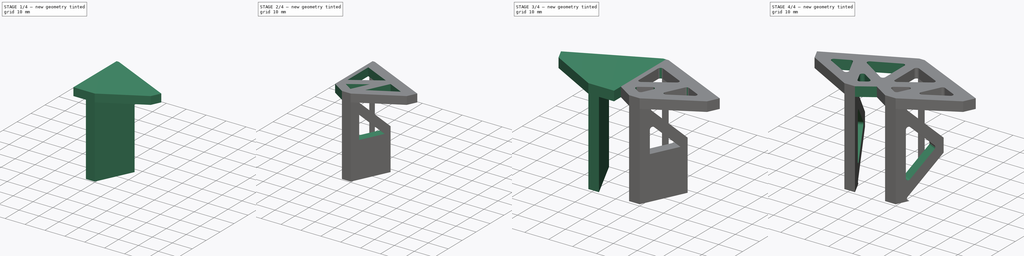
[diagram: build sequence overview — one tinted view per stage of 4, left to right]
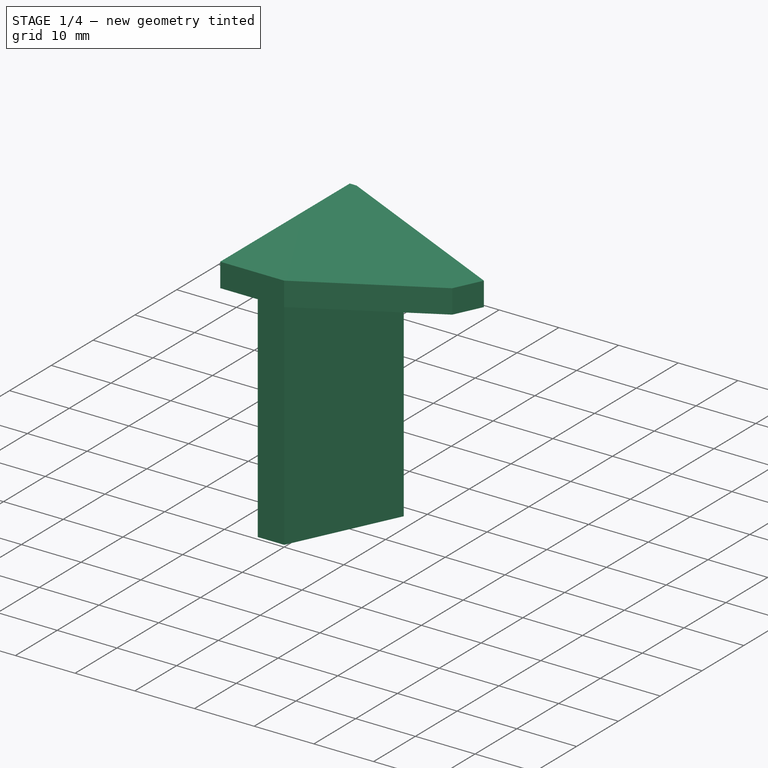
[diagram: stage 1 of 4 — iso view after this stage's code; geometry added in this stage tinted green]
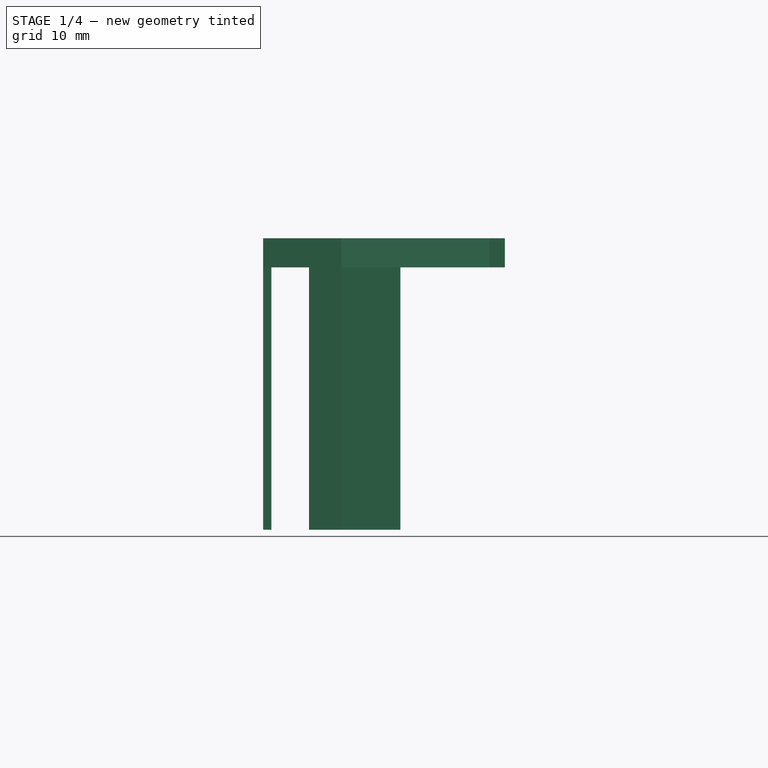
[diagram: stage 1 of 4 — front view after this stage's code; geometry added in this stage tinted green]
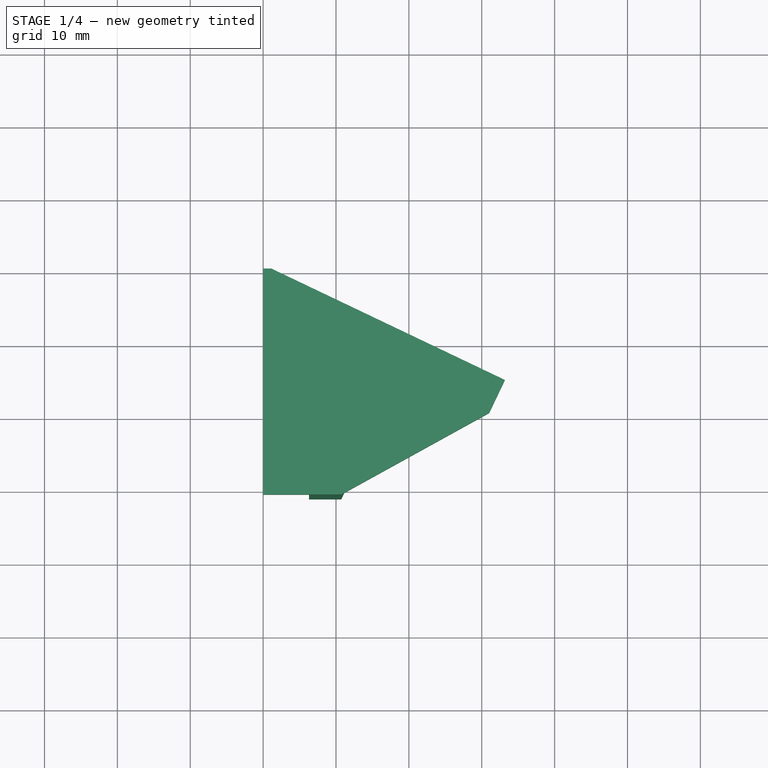
[diagram: stage 1 of 4 — top view after this stage's code; geometry added in this stage tinted green]
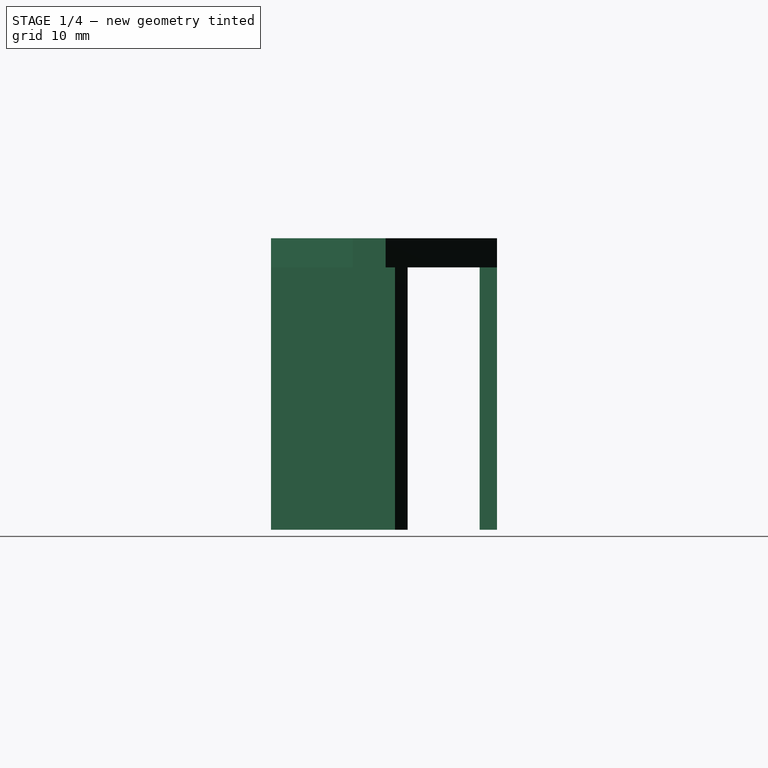
[diagram: stage 1 of 4 — right view after this stage's code; geometry added in this stage tinted green]
FCSTD DOCUMENT  (FreeCAD 0.20R29177 +426 (Git))
Label: topRowRack
License: All rights reserved
LicenseURL: http://en.wikipedia.org/wiki/All_rights_reserved
objects: Sketcher::SketchObject×8, PartDesign::Pocket×4, PartDesign::Mirrored×4, PartDesign::CoordinateSystem×3, PartDesign::Fillet×3, PartDesign::Pad×2, Spreadsheet::Sheet×1, PartDesign::PolarPattern×1, PartDesign::MultiTransform×1, PartDesign::Body×1
note: 36 computed .brp shape members not serialized (recipe doc carries the construction recipe); baked Part::Feature solids carry a one-line shape summary decoded from their .brp

FEATURE [Spreadsheet::Sheet] Spreadsheet  label="props"
  cells = A1=variable; B1=unit; C1=value; D1=min value; E1=typical value; F1=max value; A2=pan angle; B2=degree; C2(panAngle)=25.5; D2=0; A3=cell diameter; B3=mm; C3(cellDiam)=40; A4=plate left width; B4=mm; C4(plateLeftWidth)=20; E4==cellDiam / 2 - ribThick / 2; A5=plate right (USB side) width; B5=mm; C5(plateRightWidth)=15.5; E5=15.5; A6=plate height; B6=mm; C6(plateHeight)=36; E6==cellDiam - ribThick; A7=rack thicnkess; B7=mm; C7(rackThick)=31; A8=plate thickness; B8=mm; C8(plateThick)=5; A9=rib thickness; B9=mm; C9(ribThick)=4
FEATURE [Sketcher::SketchObject] Sketch  label="plateRibBaseSk"
  FullyConstrained = true
  MapMode = 5
  Support = -> [XY_Plane]
  expr: Constraints[10] = <<props>>.plateThick
  expr: Constraints[11] = <<props>>.plateThick
  expr: Constraints[12] = 90 - <<props>>.panAngle
  expr: Constraints[24] = <<props>>.plateLeftWidth
  expr: Constraints[25] = <<props>>.plateRightWidth
  expr: Constraints[27] = <<props>>.ribThick
  expr: Constraints[28] = <<props>>.rackThick
  sketch-geometry (10):
    g0: LineSegment StartX=0 StartY=0 StartZ=0 EndX=0 EndY=-5 EndZ=0
    g1: LineSegment StartX=0 StartY=-5 StartZ=0 EndX=15.2254 EndY=-12.2621 EndZ=0
    g2: LineSegment StartX=31.0206 StartY=-19.7961 StartZ=0 EndX=33.1732 EndY=-15.2831 EndZ=0
    g3: LineSegment StartX=33.1732 StartY=-15.2831 StartZ=0 EndX=1.13138 EndY=0 EndZ=0
    g4: LineSegment StartX=1.13138 StartY=0 StartZ=0 EndX=0 EndY=0 EndZ=0
    g5: LineSegment StartX=15.2254 StartY=-12.2621 StartZ=0 EndX=6.28786 EndY=-31 EndZ=0
    g6: LineSegment StartX=6.28786 StartY=-31 StartZ=0 EndX=10.7196 EndY=-31 EndZ=0
    g7: LineSegment StartX=10.7196 StartY=-31 StartZ=0 EndX=18.8357 EndY=-13.9842 EndZ=0
    g8: LineSegment StartX=18.8357 StartY=-13.9842 StartZ=0 EndX=31.0206 EndY=-19.7961 EndZ=0
    g9: LineSegment StartX=0 StartY=-48.8284 StartZ=0 EndX=19.1831 EndY=-8.61022 EndZ=0
  constraints (29):
    c: Coincident(g-1,g0)
    c: Coincident(g0,g1)
    c: Coincident(g8,g2)
    c: Coincident(g2,g3)
    c: Coincident(g3,g4)
    c: Coincident(g4,g0)
    c: Horizontal(g4)
    c: Vertical(g0)
    c: Perpendicular(g1,g2)
    c: Parallel(g3,g1)
    c: Distance(g0) = 5
    c: Distance(g2) = 5
    c: Angle(g-2,g3) = 1.12574
    c: Coincident(g5,g6)
    c: Horizontal(g6)
    c: Coincident(g6,g7)
    c: Coincident(g1,g5)
    c: Coincident(g8,g7)
    c: Parallel(g8,g3)
    c: Perpendicular(g1,g5)
    c: Perpendicular(g8,g7)
    c: PointOnObject(g9,g-2)
    c: PointOnObject(g9,g3)
    c: Perpendicular(g3,g9)
    c: Distance(g3,g9) = 20
    c: Distance(g9,g2) = 15.5
    c: Symmetric(g1,g7,g9)
    c: Distance(g1,g7) = 4
    c: DistanceY(g5,g0) = 31
FEATURE [PartDesign::Pad] Pad  label="plateRibBase"
  Direction = (0,0,1)
  Length = 36
  Length2 = 10
  Midplane = true
  Profile = -> Sketch
  ReferenceAxis = -> Sketch [N_Axis]
  Type = 0
  expr: Length = <<props>>.plateHeight
FEATURE [Sketcher::SketchObject] Sketch001  label="plateDatum1Sk"
  ExternalGeometry = -> [Pad]
  FullyConstrained = true
  MapMode = 5
  Placement = pos=(0.209691,0.439625,0) rot=(0.157992,0.698226,0.698226;2.8282rad)
  Support = -> [Pad]
  expr: Constraints[6] = <<props>>.plateLeftWidth
  sketch-geometry (2):
    g0: LineSegment StartX=-21.0212 StartY=0 StartZ=0 EndX=-31.0212 EndY=0 EndZ=0
    g1: LineSegment StartX=-21.0212 StartY=0 StartZ=0 EndX=-21.0212 EndY=-10 EndZ=0
  constraints (8):
    c: PointOnObject(g0,g-1)
    c: Horizontal(g0)
    c: Coincident(g1,g0)
    c: Vertical(g1)
    c: Distance(g0) = 10
    c: Distance(g1) = 10
    c: Distance(g0,g-3) = 20
    c: DistanceX(g-2,g0) = -21.0212  'plateCenterYaxisDiff'
FEATURE [PartDesign::CoordinateSystem] plateLCS1
  AttacherType = Attacher::AttachEngine3D
  MapMode = 49
  Placement = pos=(19.1831,-8.61022,1.2e-15) rot=(-0.952423,0.215511,-0.215511;1.61952rad)
  Support = -> [Sketch001]
FEATURE [Sketcher::SketchObject] Sketch002  label="roofBaseSk"
  ExternalGeometry = -> [Pad]
  FullyConstrained = true
  MapMode = 5
  Placement = pos=(0,0,18) rot=(0,0,1;0rad)
  Support = -> [Pad]
  sketch-geometry (6):
    g0: LineSegment StartX=10.7196 StartY=-31 StartZ=0 EndX=31.0206 EndY=-19.7961 EndZ=0
    g1: LineSegment StartX=31.0206 StartY=-19.7961 StartZ=0 EndX=33.1732 EndY=-15.2831 EndZ=0
    g2: LineSegment StartX=33.1732 StartY=-15.2831 StartZ=0 EndX=1.13138 EndY=0 EndZ=0
    g3: LineSegment StartX=1.13138 StartY=0 StartZ=0 EndX=0 EndY=0 EndZ=0
    g4: LineSegment StartX=0 StartY=0 StartZ=0 EndX=0 EndY=-31 EndZ=0
    g5: LineSegment StartX=0 StartY=-31 StartZ=0 EndX=10.7196 EndY=-31 EndZ=0
  constraints (13):
    c: Coincident(g0,g-6)
    c: Coincident(g0,g1)
    c: Coincident(g1,g-6)
    c: Coincident(g1,g2)
    c: Coincident(g2,g-3)
    c: Coincident(g2,g3)
    c: Coincident(g3,g4)
    c: PointOnObject(g4,g-2)
    c: Coincident(g4,g5)
    c: Coincident(g5,g0)
    c: Horizontal(g5)
    c: Coincident(g0,g-5)
    c: Coincident(g3,g-4)
FEATURE [PartDesign::Pad] Pad001  label="roofBase"
  BaseFeature = -> Pad
  Direction = (0,0,1)
  Length = 4
  Length2 = 10
  Profile = -> Sketch002
  ReferenceAxis = -> Sketch002 [N_Axis]
  Type = 0
  expr: Length = <<props>>.ribThick
FEATURE [Sketcher::SketchObject] Sketch003  label="plateSlotSk"
  ExternalGeometry = -> [Pad001]
  FullyConstrained = true
  MapMode = 5
  Placement = pos=(0.209691,0.439625,0) rot=(0.157992,0.698226,0.698226;2.8282rad)
  Support = -> [Pad001]
  expr: Constraints[10] = <<props>>.plateHeight
  expr: Constraints[9] = <<props>>.plateLeftWidth + <<props>>.plateRightWidth
  sketch-geometry (4):
    g0: LineSegment StartX=-36.5212 StartY=-18 StartZ=0 EndX=-1.02117 EndY=-18 EndZ=0
    g1: LineSegment StartX=-1.02117 StartY=-18 StartZ=0 EndX=-1.02117 EndY=18 EndZ=0
    g2: LineSegment StartX=-1.02117 StartY=18 StartZ=0 EndX=-36.5212 EndY=18 EndZ=0
    g3: LineSegment StartX=-36.5212 StartY=18 StartZ=0 EndX=-36.5212 EndY=-18 EndZ=0
  constraints (11):
    c: Coincident(g0,g1)
    c: Coincident(g1,g2)
    c: Coincident(g2,g3)
    c: Coincident(g3,g0)
    c: Horizontal(g0)
    c: Horizontal(g2)
    c: Vertical(g3)
    c: PointOnObject(g1,g-3)
    c: Symmetric(g1,g0,g-1)
    c: Distance(g2) = 35.5
    c: Distance(g3) = 36
FEATURE [PartDesign::Pocket] Pocket  label="plateSlot"
  BaseFeature = -> Pad001
  Direction = (-0.430511,-0.902585,2e-16)
  Length = 5
  Length2 = 5
  Profile = -> Sketch003
  ReferenceAxis = -> Sketch003 [N_Axis]
  Type = 0
  expr: Length = <<props>>.plateThick
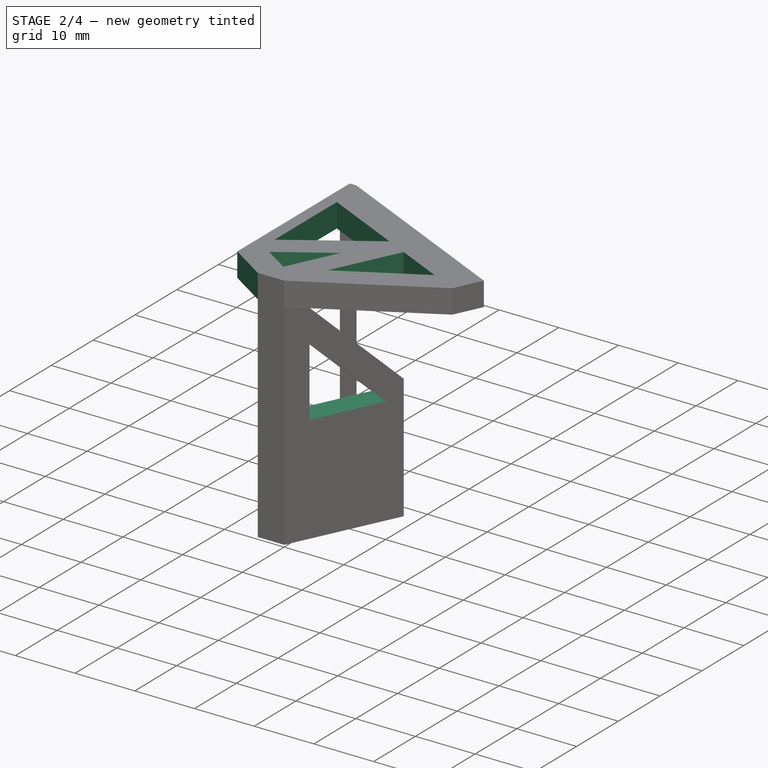
[diagram: stage 2 of 4 — iso view after this stage's code; geometry added in this stage tinted green]
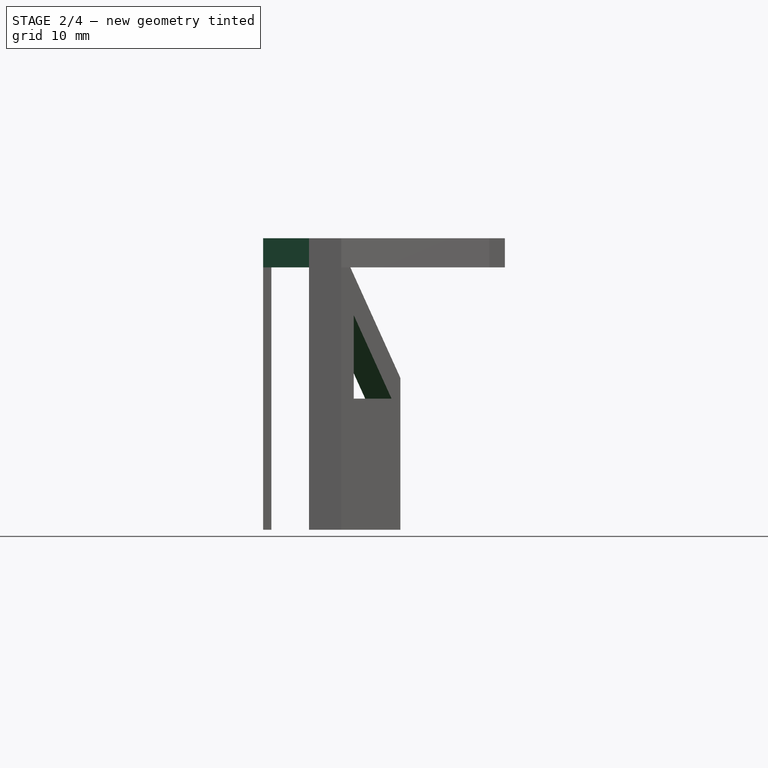
[diagram: stage 2 of 4 — front view after this stage's code; geometry added in this stage tinted green]
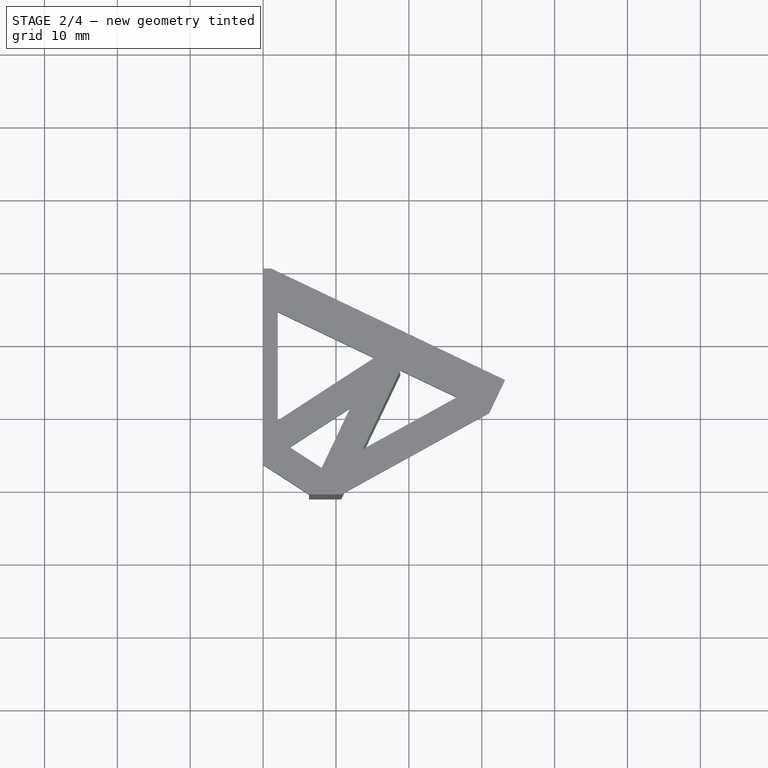
[diagram: stage 2 of 4 — top view after this stage's code; geometry added in this stage tinted green]
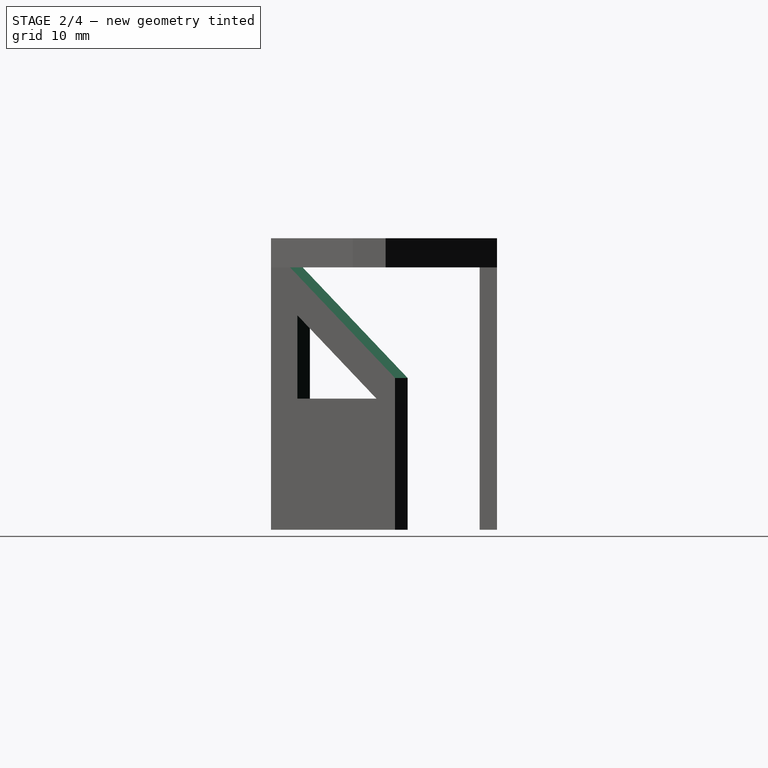
[diagram: stage 2 of 4 — right view after this stage's code; geometry added in this stage tinted green]
FEATURE [Sketcher::SketchObject] Sketch004  label="ribLightSk"
  ExternalGeometry = -> [Pocket]
  FullyConstrained = true
  MapMode = 5
  Placement = pos=(20.7786,-9.91087,0) rot=(0.746143,0.470781,0.470781;1.85954rad)
  Support = -> [Pocket]
  expr: Constraints[11] = <<props>>.ribThick / 2
  expr: Constraints[16] = <<props>>.ribThick
  expr: Constraints[19] = <<props>>.ribThick / sqrt(2)
  expr: Constraints[9] = <<props>>.ribThick / 2
  sketch-geometry (7):
    g0: LineSegment StartX=-23.3652 StartY=18 StartZ=0 EndX=-4.44124 EndY=0 EndZ=0
    g1: LineSegment StartX=-4.51293 StartY=18 StartZ=0 EndX=-20.4633 EndY=18 EndZ=0
    g2: LineSegment StartX=-20.4633 StartY=18 StartZ=0 EndX=-4.51293 EndY=2.82843 EndZ=0
    g3: LineSegment StartX=-4.51293 StartY=2.82843 StartZ=0 EndX=-4.51293 EndY=18 EndZ=0
    g4: LineSegment StartX=-19.3652 StartY=0 StartZ=0 EndX=-19.3652 EndY=11.4351 EndZ=0
    g5: LineSegment StartX=-19.3652 StartY=11.4351 StartZ=0 EndX=-7.34317 EndY=0 EndZ=0
    g6: LineSegment StartX=-19.3652 StartY=0 StartZ=0 EndX=-7.34317 EndY=0 EndZ=0
  constraints (20):
    c: Coincident(g0,g-3)
    c: PointOnObject(g0,g-1)
    c: Horizontal(g1)
    c: Coincident(g1,g2)
    c: Coincident(g2,g3)
    c: Coincident(g3,g1)
    c: Parallel(g2,g0)
    c: Vertical(g4)
    c: Coincident(g4,g5)
    c: Distance(g2,g0) = 2
    c: Parallel(g5,g0)
    c: Distance(g5,g0) = 2
    c: PointOnObject(g5,g-1)
    c: Coincident(g6,g4)
    c: Coincident(g6,g5)
    c: Horizontal(g6)
    c: Distance(g4,g-3) = 4
    c: Coincident(g1,g-4)
    c: Vertical(g3)
    c: DistanceY(g-1,g2) = 2.82843
FEATURE [Sketcher::SketchObject] Sketch005  label="roofLight1Sk"
  ExternalGeometry = -> [Pocket]
  FullyConstrained = true
  MapMode = 5
  Placement = pos=(0,0,18) rot=(1,0,0;3.14159rad)
  Support = -> [Pocket]
  expr: Constraints[7] = <<props>>.ribThick
  sketch-geometry (3):
    g0: LineSegment StartX=13.6773 StartY=24.7989 StartZ=0 EndX=26.5801 EndY=17.678 EndZ=0
    g1: LineSegment StartX=26.5801 StartY=17.678 StartZ=0 EndX=18.8357 EndY=13.9842 EndZ=0
    g2: LineSegment StartX=18.8357 StartY=13.9842 StartZ=0 EndX=13.6773 EndY=24.7989 EndZ=0
  constraints (8):
    c: Coincident(g1,g0)
    c: Coincident(g2,g1)
    c: Coincident(g2,g0)
    c: Coincident(g1,g-5)
    c: PointOnObject(g0,g-5)
    c: PointOnObject(g0,g-3)
    c: Parallel(g0,g-4)
    c: Distance(g0,g-4) = 4
FEATURE [Sketcher::SketchObject] Sketch006  label="roofLight2Sk"
  ExternalGeometry = -> [Pocket]
  FullyConstrained = true
  MapMode = 5
  Placement = pos=(0,0,18) rot=(1,0,0;3.14159rad)
  Support = -> [Pocket]
  expr: Constraints[15] = <<props>>.ribThick
  expr: Constraints[16] = <<props>>.ribThick
  expr: Constraints[24] = <<props>>.ribThick / 2
  sketch-geometry (11):
    g0: LineSegment StartX=8.02474 StartY=27.3585 StartZ=0 EndX=3.67256 EndY=24.5326 EndZ=0
    g1: LineSegment StartX=3.67256 StartY=24.5326 StartZ=0 EndX=11.93 EndY=19.1711 EndZ=0
    g2: GeomPoint X=-6.28786 Y=31 Z=0
    g3: GeomPoint X=-15.2254 Y=12.2621 Z=0
    g4: LineSegment StartX=6.28786 StartY=31 StartZ=0 EndX=0 EndY=31 EndZ=0
    g5: LineSegment StartX=0 StartY=31 StartZ=0 EndX=0 EndY=26.9173 EndZ=0
    g6: LineSegment StartX=0 StartY=26.9173 StartZ=0 EndX=6.28786 EndY=31 EndZ=0
    g7: LineSegment StartX=2 StartY=20.8494 StartZ=0 EndX=15.2254 EndY=12.2621 EndZ=0
    g8: LineSegment StartX=15.2254 StartY=12.2621 StartZ=0 EndX=2 EndY=5.95395 EndZ=0
    g9: LineSegment StartX=2 StartY=20.8494 StartZ=0 EndX=2 EndY=5.95395 EndZ=0
    g10: LineSegment StartX=8.02474 StartY=27.3585 StartZ=0 EndX=11.93 EndY=19.1711 EndZ=0
  constraints (27):
    c: PointOnObject(g0,g-3)
    c: Coincident(g1,g0)
    c: PointOnObject(g1,g-3)
    c: Symmetric(g-3,g3,g-2)
    c: Symmetric(g-3,g2,g-2)
    c: Coincident(g4,g-3)
    c: PointOnObject(g4,g-2)
    c: Horizontal(g4)
    c: Coincident(g5,g4)
    c: Vertical(g5)
    c: Coincident(g6,g5)
    c: Coincident(g6,g4)
    c: Coincident(g7,g8)
    c: Parallel(g7,g1)
    c: Parallel(g6,g0)
    c: Distance(g4,g0) = 4
    c: Distance(g7,g1) = 4
    c: Coincident(g7,g-4)
    c: PointOnObject(g3,g0)
    c: PointOnObject(g2,g1)
    c: PointOnObject(g8,g-4)
    c: Coincident(g9,g7)
    c: Coincident(g9,g8)
    c: Vertical(g9)
    c: DistanceX(g-2,g8) = 2
    c: Coincident(g10,g0)
    c: Coincident(g10,g1)
FEATURE [PartDesign::Pocket] Pocket001  label="ribLight"
  BaseFeature = -> Pocket
  Direction = (-0.902585,0.430511,2e-16)
  Length = 5
  Length2 = 5
  Profile = -> Sketch004
  ReferenceAxis = -> Sketch004 [N_Axis]
  Type = 2
FEATURE [PartDesign::Pocket] Pocket002  label="roofLight1"
  BaseFeature = -> Pocket001
  Direction = (0,0,1)
  Length = 5
  Length2 = 5
  Profile = -> Sketch005
  ReferenceAxis = -> Sketch005 [N_Axis]
  Type = 2
FEATURE [PartDesign::Pocket] Pocket003  label="roofLight2"
  BaseFeature = -> Pocket002
  Direction = (0,0,1)
  Length = 5
  Length2 = 5
  Profile = -> Sketch006
  ReferenceAxis = -> Sketch006 [N_Axis]
  Type = 2
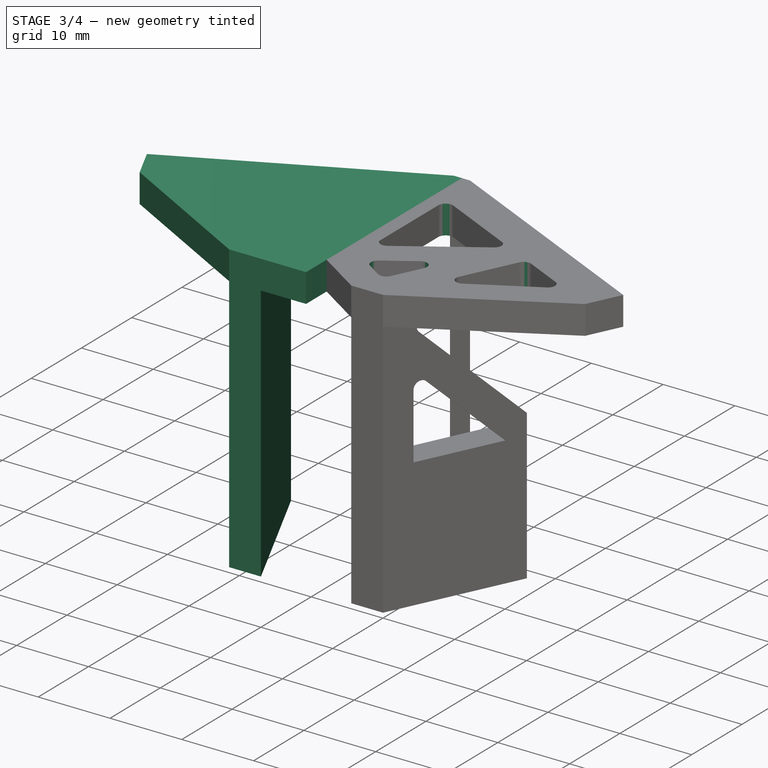
[diagram: stage 3 of 4 — iso view after this stage's code; geometry added in this stage tinted green]
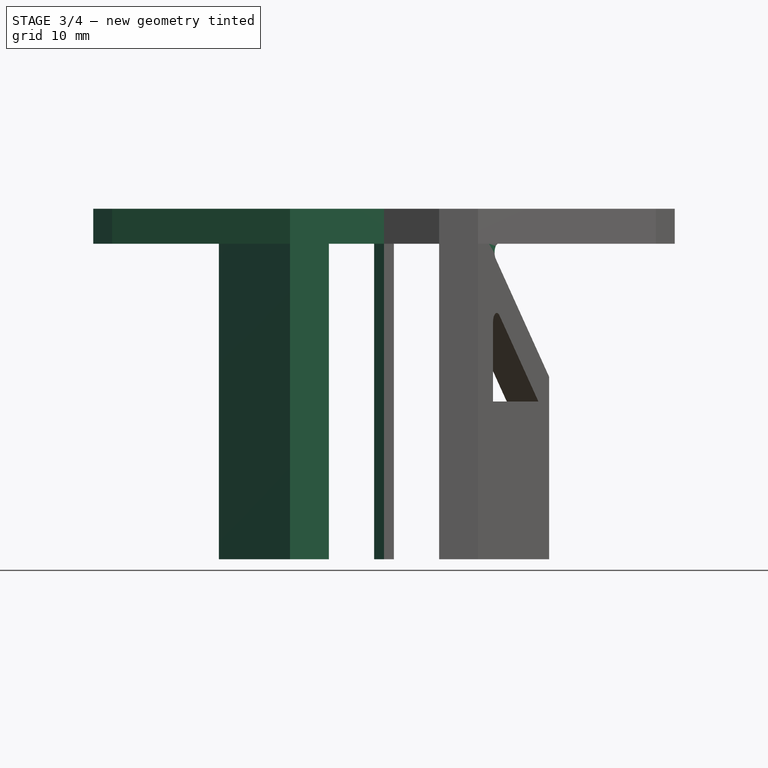
[diagram: stage 3 of 4 — front view after this stage's code; geometry added in this stage tinted green]
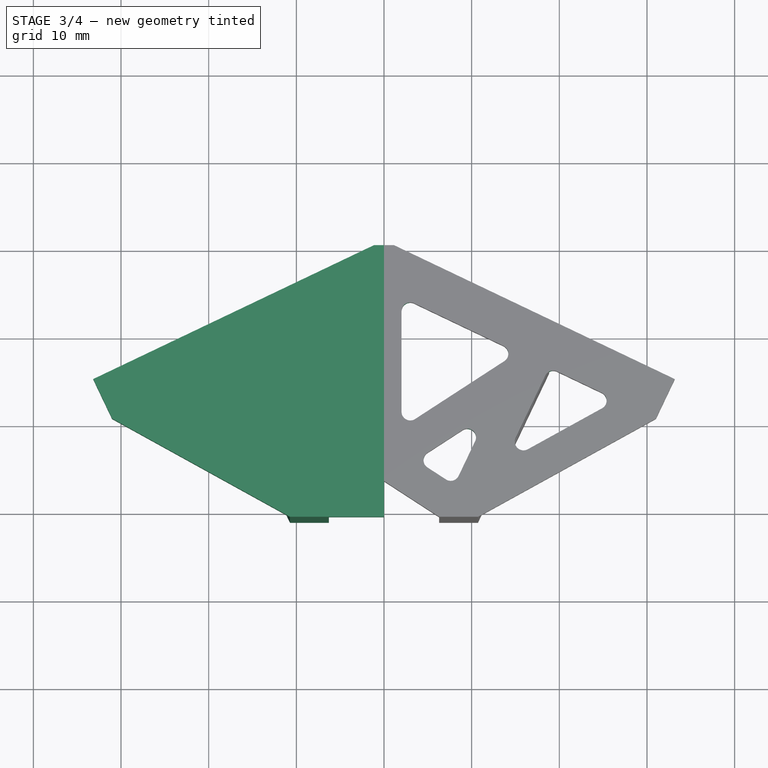
[diagram: stage 3 of 4 — top view after this stage's code; geometry added in this stage tinted green]
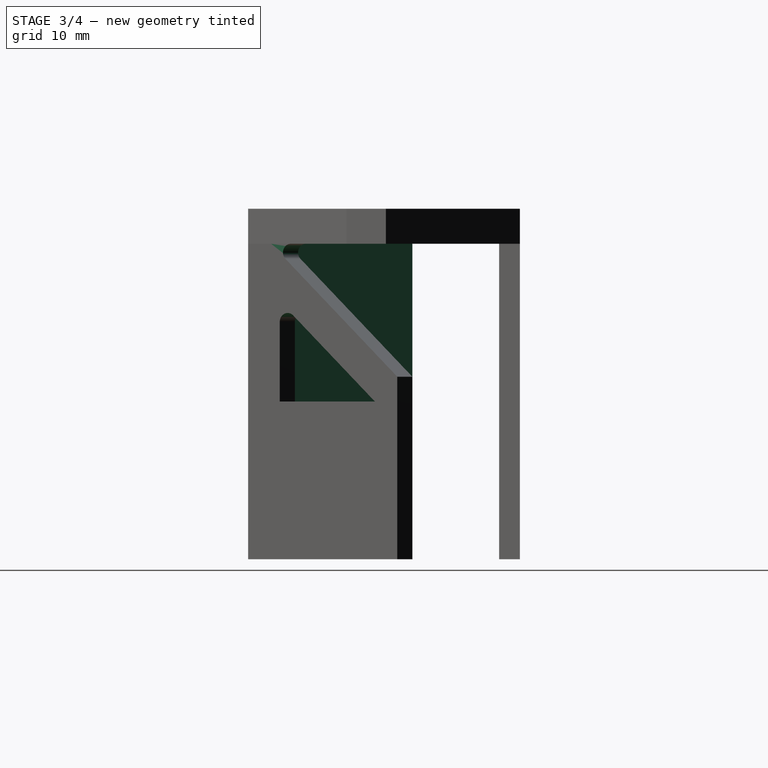
[diagram: stage 3 of 4 — right view after this stage's code; geometry added in this stage tinted green]
FEATURE [PartDesign::Mirrored] Mirrored001
  MirrorPlane = -> XY_Plane
FEATURE [PartDesign::Mirrored] Mirrored002
  MirrorPlane = -> YZ_Plane
FEATURE [PartDesign::Fillet] Fillet  label="ribFillet"
  Base = -> Pocket003 [Edge84,Edge56]
  BaseFeature = -> Pocket003
  Radius = 1
  SupportTransform = false
  UseAllEdges = false
FEATURE [PartDesign::CoordinateSystem] rowLCS
  AttacherType = Attacher::AttachEngine3D
  Support = -> [Origin]
FEATURE [PartDesign::Fillet] Fillet003  label="roofFillet"
  Base = -> Fillet [Edge71,Edge69,Edge70,Edge44,Edge42,Edge89,Edge54,Edge9,Edge11]
  BaseFeature = -> Fillet
  Radius = 1
  SupportTransform = false
  UseAllEdges = false
FEATURE [PartDesign::Mirrored] Mirrored  label="baseMirror"
  BaseFeature = -> Fillet003
  MirrorPlane = -> YZ_Plane
  Originals = -> [Pad,Pad001]
FEATURE [PartDesign::PolarPattern] PolarPattern  label="plateSlotPolar"
  Angle = 360
  Axis = -> Y_Axis
  BaseFeature = -> Mirrored
  Occurrences = 2
  Originals = -> [Pocket]
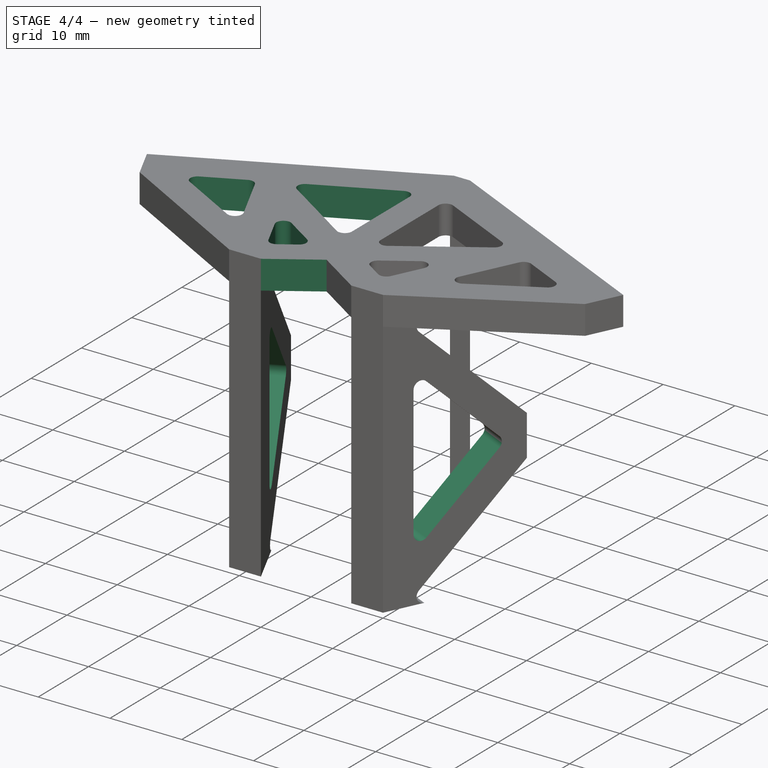
[diagram: stage 4 of 4 — iso view after this stage's code; geometry added in this stage tinted green]
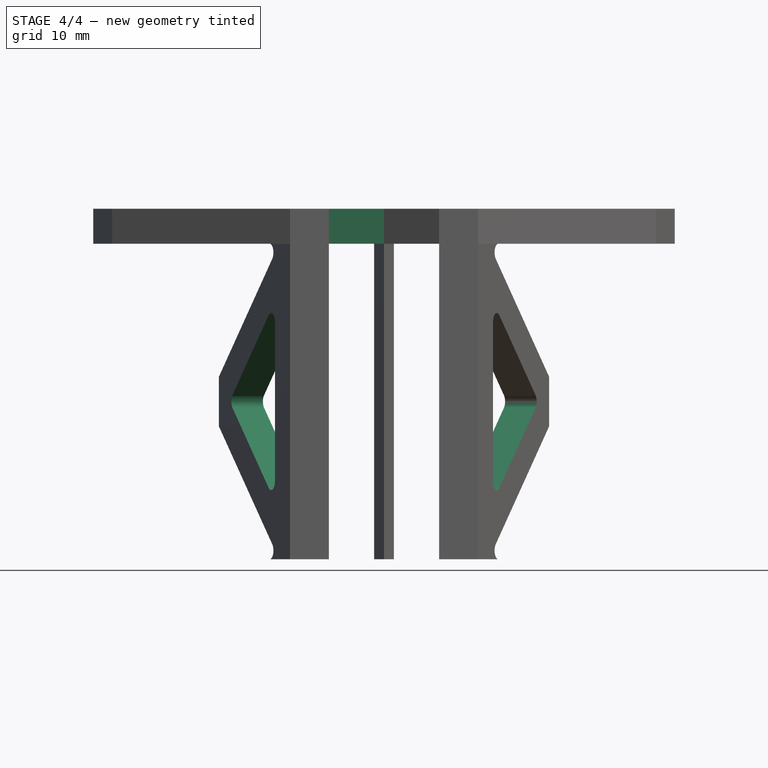
[diagram: stage 4 of 4 — front view after this stage's code; geometry added in this stage tinted green]
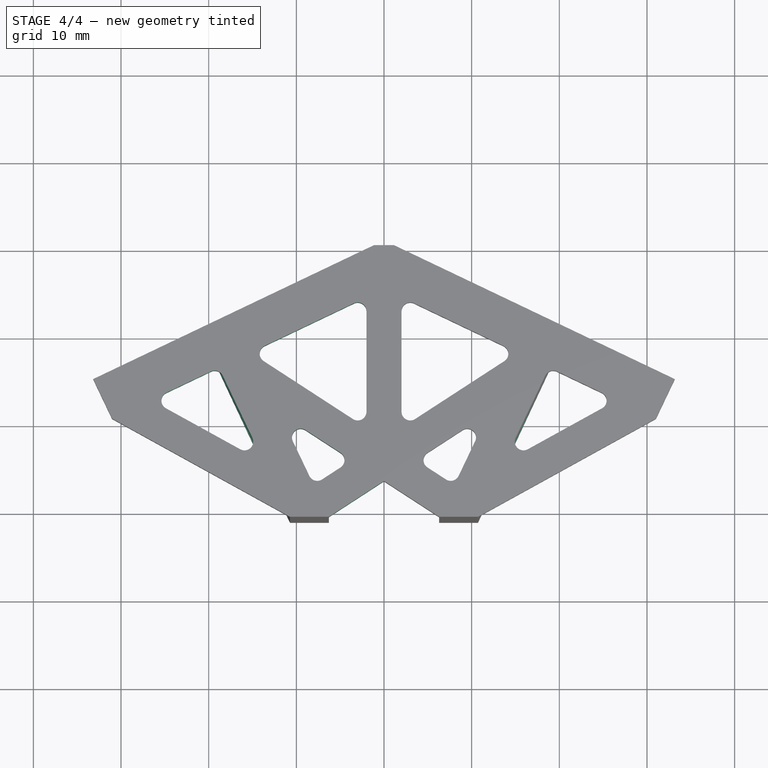
[diagram: stage 4 of 4 — top view after this stage's code; geometry added in this stage tinted green]
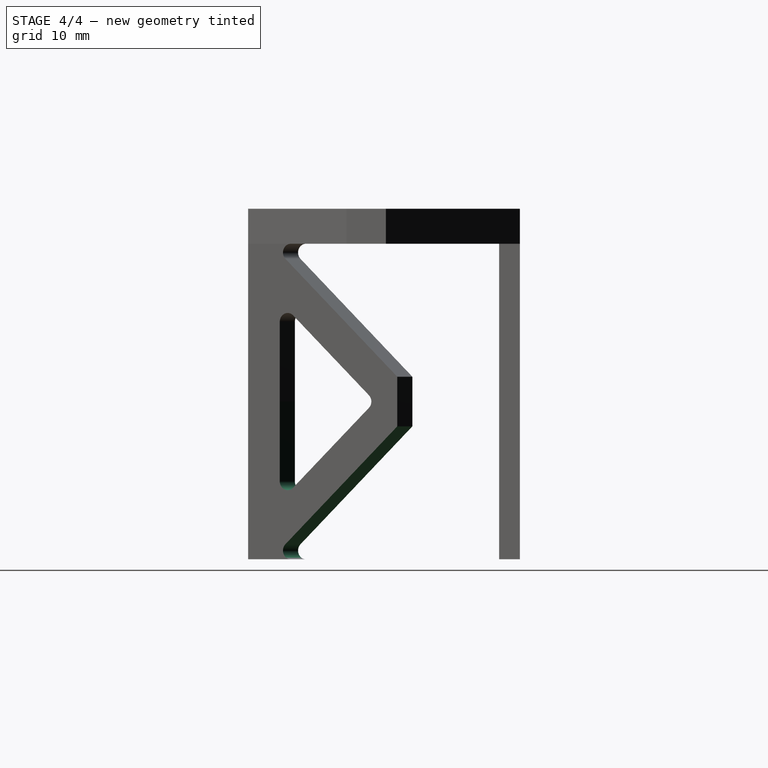
[diagram: stage 4 of 4 — right view after this stage's code; geometry added in this stage tinted green]
FEATURE [PartDesign::MultiTransform] MultiTransform  label="ribLightMulti"
  BaseFeature = -> PolarPattern
  Originals = -> [Pocket001,Fillet]
  Transformations = -> [Mirrored001,Mirrored002]
FEATURE [PartDesign::Mirrored] Mirrored003  label="roofLightMirror"
  BaseFeature = -> MultiTransform
  MirrorPlane = -> YZ_Plane
  Originals = -> [Pocket002,Pocket003,Fillet003]
FEATURE [PartDesign::Fillet] Fillet002  label="ribLPostFillet"
  Base = -> Mirrored003 [Edge191,Edge314]
  BaseFeature = -> Mirrored003
  Radius = 1
  SupportTransform = false
  UseAllEdges = false
FEATURE [Sketcher::SketchObject] Sketch007  label="plateDatum2Sk"
  FullyConstrained = true
  MapMode = 5
  Placement = pos=(-0.209691,0.439625,0) rot=(-0.157992,0.698226,0.698226;3.45499rad)
  Support = -> [Mirrored]
  expr: Constraints[6] = -<<plateDatum1Sk>>.Constraints.plateCenterYaxisDiff
  sketch-geometry (2):
    g0: LineSegment StartX=21.0212 StartY=0 StartZ=0 EndX=31.0212 EndY=0 EndZ=0
    g1: LineSegment StartX=21.0212 StartY=0 StartZ=0 EndX=21.0212 EndY=10 EndZ=0
  constraints (7):
    c: PointOnObject(g0,g-1)
    c: PointOnObject(g0,g-1)
    c: Coincident(g1,g0)
    c: Vertical(g1)
    c: Distance(g0) = 10
    c: Distance(g1) = 10
    c: DistanceX(g-2,g0) = 21.0212
FEATURE [PartDesign::CoordinateSystem] plateLCS2
  AttacherType = Attacher::AttachEngine3D
  MapMode = 49
  Placement = pos=(-19.1831,-8.61022,1.1e-15) rot=(-0.157992,0.698226,0.698226;3.45499rad)
  Support = -> [Sketch007]
FEATURE [PartDesign::Body] Body  label="dualCamRow"
  Group = -> [rowLCS,Sketch,Pad,Sketch001,plateLCS1,Sketch002,Pad001,Sketch003,Pocket,Sketch004,Sketch005,Sketch006,Pocket001,Pocket002,Pocket003,Fillet,Fillet003,Mirrored,Sketch007,plateLCS2,PolarPattern,MultiTransform,Mirrored001,Mirrored002,Mirrored003,Fillet002]
  Origin = -> Origin
  Tip = -> Fillet002
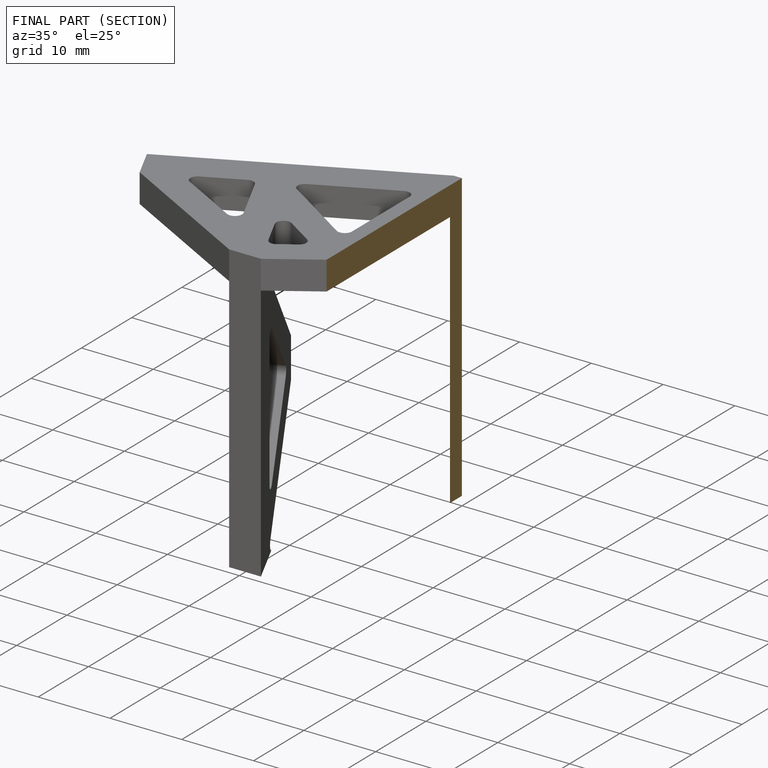
[diagram: finished part — half-section view (interior)]
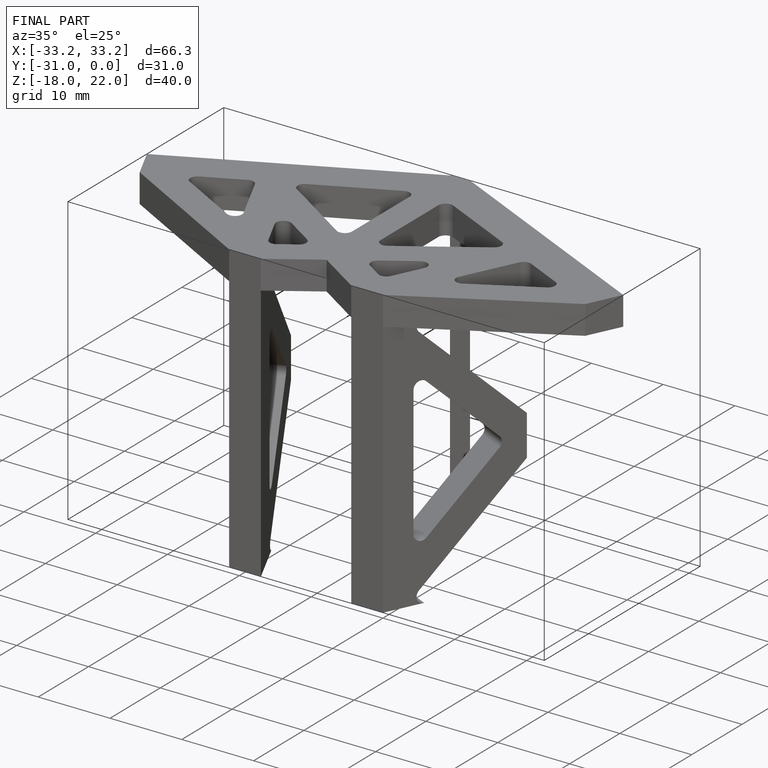
[diagram: finished part — iso view with bounding-box wireframe]
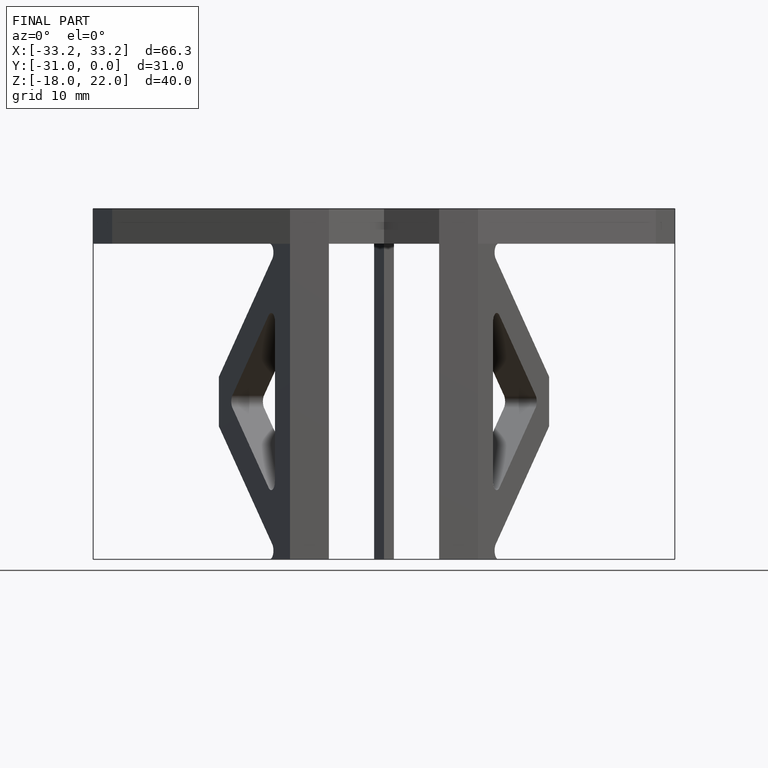
[diagram: finished part — front view with bounding-box wireframe]
